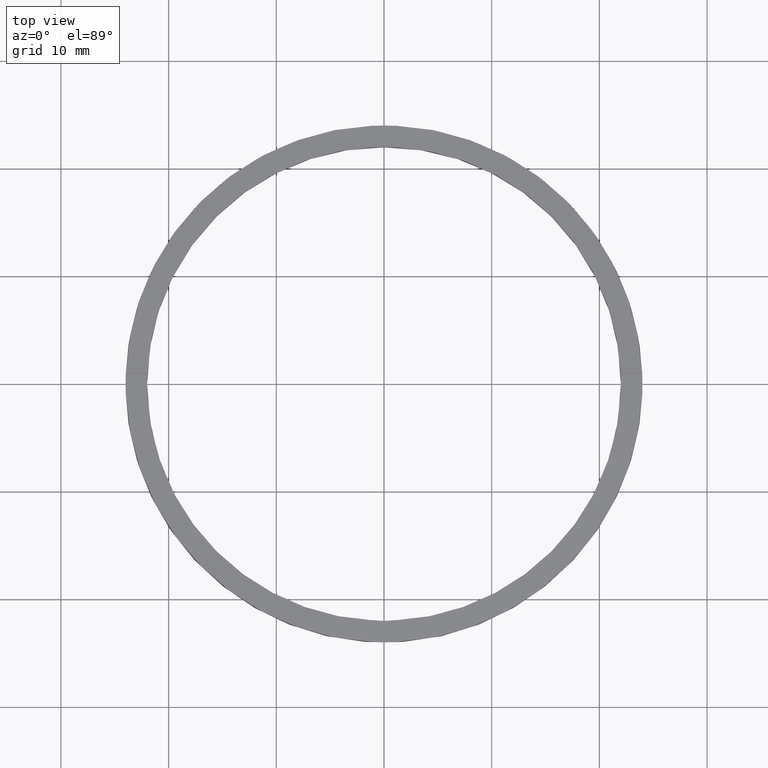
[diagram: clean part render]
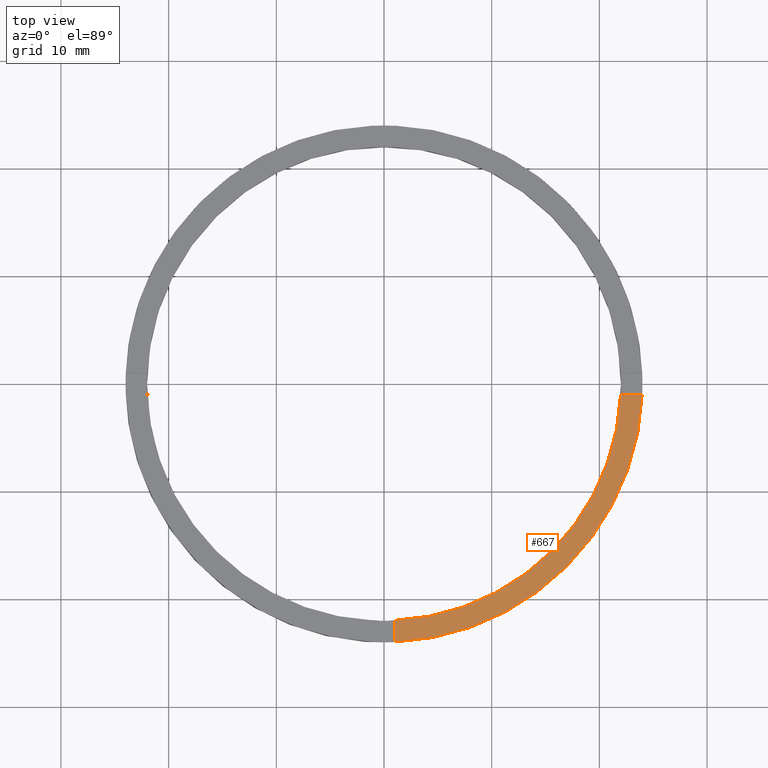
[diagram: same view with one face highlighted and labeled with its STEP entity id]
A machine part, top view. The second image highlights one B-rep face of the part: STEP entity #667.
In plain terms, the highlighted planar face has unit normal (0, 0, 1).
Its self-contained STEP definition (entity closure, byte-faithful):
#26 = DIRECTION ( 'NONE',  ( 1.000000000000000000, 4.336808689942017120E-17, 0.000000000000000000 ) ) ;
#38 = CARTESIAN_POINT ( 'NONE',  ( 0.9999999999998380185, -14.00000000000018474, 2.500000000000000000 ) ) ;
#66 = VERTEX_POINT ( 'NONE', #467 ) ;
#69 = CIRCLE ( 'NONE', #140, 22.00000000000000000 ) ;
#121 = LINE ( 'NONE', #602, #650 ) ;
#130 = CARTESIAN_POINT ( 'NONE',  ( 0.000000000000000000, 0.000000000000000000, 2.500000000000000000 ) ) ;
#140 = AXIS2_PLACEMENT_3D ( 'NONE', #341, #515, #750 ) ;
#143 = EDGE_CURVE ( 'NONE', #66, #218, #586, .T. ) ;
#165 = VERTEX_POINT ( 'NONE', #772 ) ;
#185 = ORIENTED_EDGE ( 'NONE', *, *, #622, .F. ) ;
#195 = AXIS2_PLACEMENT_3D ( 'NONE', #130, #727, #518 ) ;
#215 = CARTESIAN_POINT ( 'NONE',  ( 21.97726097583590388, -1.000000000000157874, 2.500000000000000000 ) ) ;
#218 = VERTEX_POINT ( 'NONE', #551 ) ;
#245 = ORIENTED_EDGE ( 'NONE', *, *, #143, .T. ) ;
#263 = VERTEX_POINT ( 'NONE', #215 ) ;
#330 = ORIENTED_EDGE ( 'NONE', *, *, #487, .F. ) ;
#341 = CARTESIAN_POINT ( 'NONE',  ( 0.000000000000000000, 0.000000000000000000, 2.500000000000000000 ) ) ;
#366 = CARTESIAN_POINT ( 'NONE',  ( 0.000000000000000000, 0.000000000000000000, 2.500000000000000000 ) ) ;
#380 = FACE_OUTER_BOUND ( 'NONE', #720, .T. ) ;
#405 = DIRECTION ( 'NONE',  ( 0.000000000000000000, 0.000000000000000000, 1.000000000000000000 ) ) ;
#460 = DIRECTION ( 'NONE',  ( -1.301042606982605074E-16, 1.000000000000000000, -0.000000000000000000 ) ) ;
#466 = PLANE ( 'NONE',  #763 ) ;
#467 = CARTESIAN_POINT ( 'NONE',  ( 0.9999999999998389066, -23.97915761656360800, 2.500000000000000000 ) ) ;
#487 = EDGE_CURVE ( 'NONE', #165, #263, #69, .T. ) ;
#515 = DIRECTION ( 'NONE',  ( 0.000000000000000000, 0.000000000000000000, 1.000000000000000000 ) ) ;
#518 = DIRECTION ( 'NONE',  ( 1.000000000000000000, 0.000000000000000000, 0.000000000000000000 ) ) ;
#551 = CARTESIAN_POINT ( 'NONE',  ( 23.97915761656359734, -1.000000000000157652, 2.500000000000000000 ) ) ;
#586 = CIRCLE ( 'NONE', #195, 24.00000000000000355 ) ;
#597 = ORIENTED_EDGE ( 'NONE', *, *, #718, .F. ) ;
#602 = CARTESIAN_POINT ( 'NONE',  ( 13.99999999999999822, -1.000000000000158096, 2.500000000000000000 ) ) ;
#622 = EDGE_CURVE ( 'NONE', #263, #218, #121, .T. ) ;
#645 = VECTOR ( 'NONE', #460, 1000.000000000000000 ) ;
#650 = VECTOR ( 'NONE', #26, 1000.000000000000000 ) ;
#651 = LINE ( 'NONE', #38, #645 ) ;
#667 = ADVANCED_FACE ( 'NONE', ( #380 ), #466, .T. ) ;
#714 = DIRECTION ( 'NONE',  ( 1.000000000000000000, 0.000000000000000000, -0.000000000000000000 ) ) ;
#718 = EDGE_CURVE ( 'NONE', #66, #165, #651, .T. ) ;
#720 = EDGE_LOOP ( 'NONE', ( #185, #330, #597, #245 ) ) ;
#727 = DIRECTION ( 'NONE',  ( 0.000000000000000000, 0.000000000000000000, 1.000000000000000000 ) ) ;
#750 = DIRECTION ( 'NONE',  ( 1.000000000000000000, 0.000000000000000000, 0.000000000000000000 ) ) ;
#763 = AXIS2_PLACEMENT_3D ( 'NONE', #366, #405, #714 ) ;
#772 = CARTESIAN_POINT ( 'NONE',  ( 0.9999999999998386846, -21.97726097583591454, 2.500000000000000000 ) ) ;